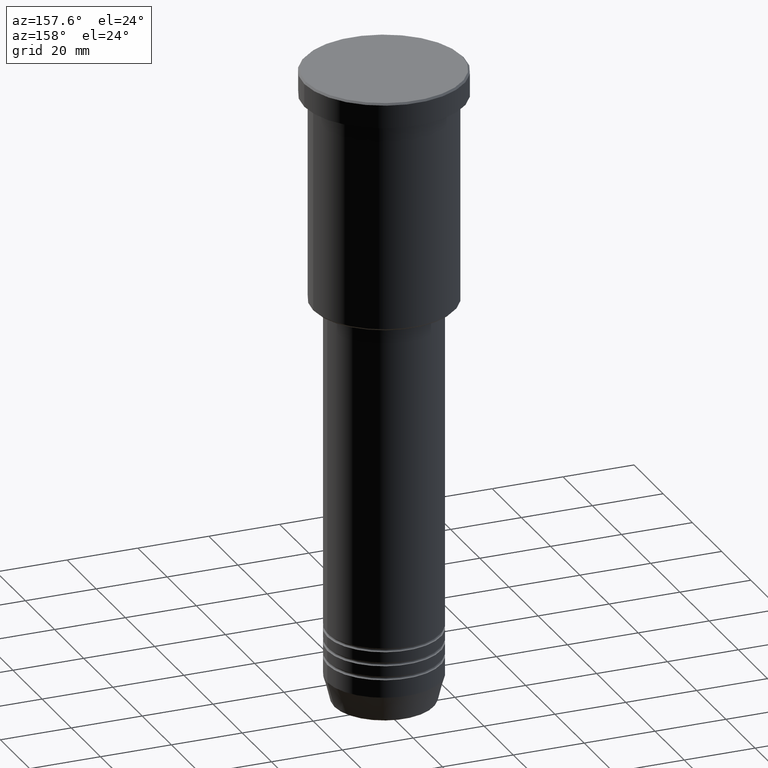
[diagram: clean part render]
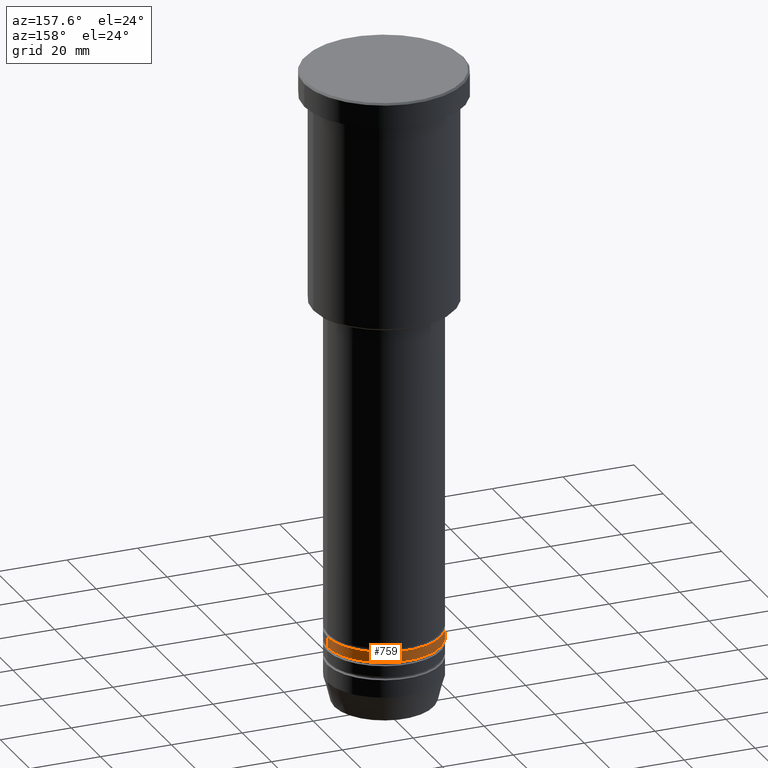
[diagram: same view with one face highlighted and labeled with its STEP entity id]
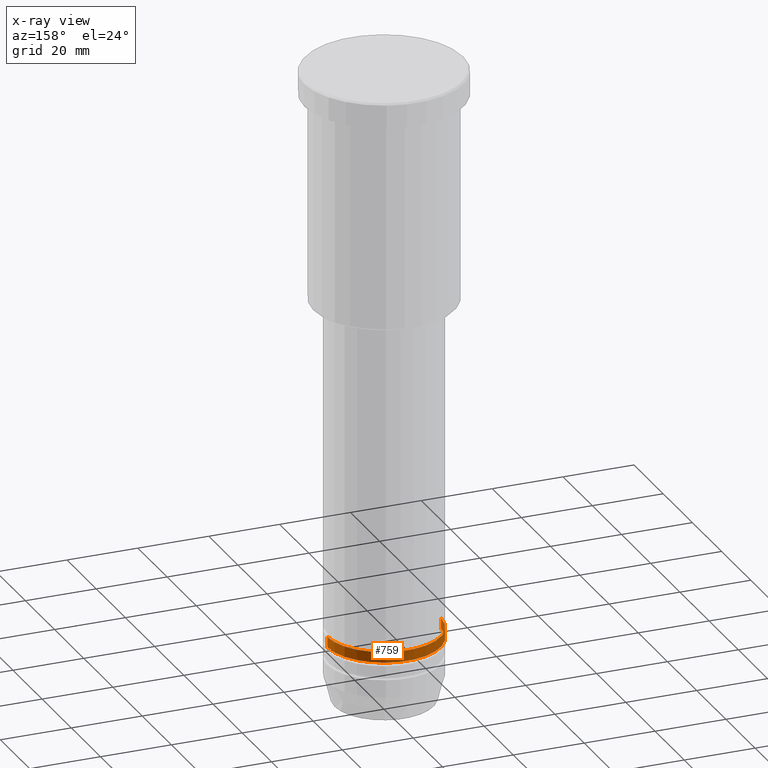
[diagram: x-ray of the same camera — body ghosted, the highlighted face saturated]
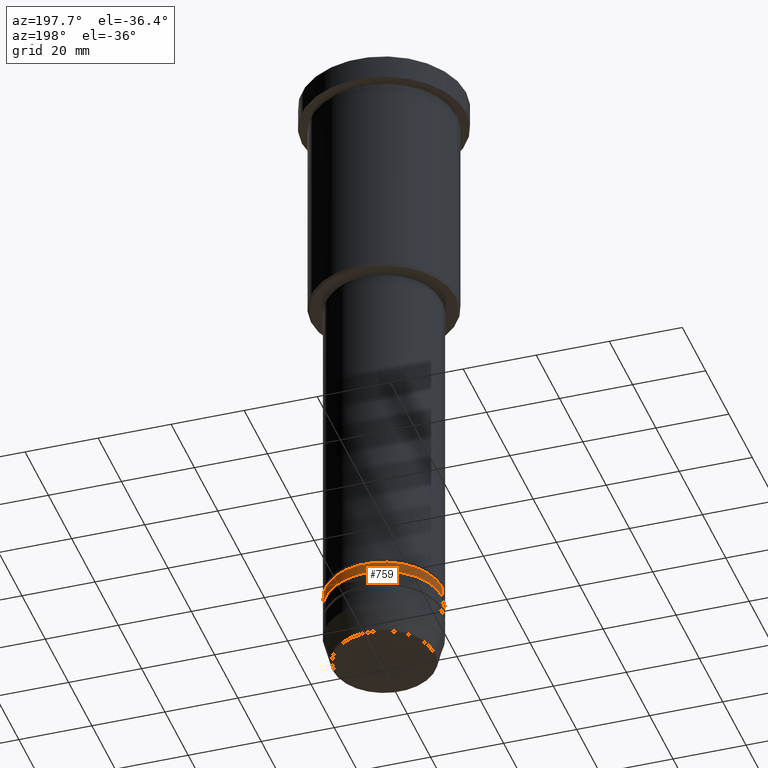
[diagram: same view with one face highlighted and labeled with its STEP entity id]
A machine part, auxiliary view. The second image highlights one B-rep face of the part: STEP entity #759.
The next image is the same camera in x-ray: the body ghosted, the highlighted face saturated — about 0% of this face is hidden behind the body in this view.
A second angle (auxiliary view) of the same face is appended — the face is thin or edge-on in the first view.
In plain terms, the highlighted cylindrical surface (partial cylindrical patch) has radius 16 mm, axis along (-0, -0, 1).
Its self-contained STEP definition (entity closure, byte-faithful):
#22 = DIRECTION ( 'NONE',  ( -0.000000000000000000, -0.000000000000000000, 1.000000000000000000 ) ) ;
#40 = DIRECTION ( 'NONE',  ( 1.000000000000000000, 0.000000000000000000, 0.000000000000000000 ) ) ;
#68 = VERTEX_POINT ( 'NONE', #1183 ) ;
#120 = VERTEX_POINT ( 'NONE', #560 ) ;
#135 = AXIS2_PLACEMENT_3D ( 'NONE', #230, #511, #40 ) ;
#193 = VERTEX_POINT ( 'NONE', #1104 ) ;
#227 = DIRECTION ( 'NONE',  ( -0.000000000000000000, -0.000000000000000000, 1.000000000000000000 ) ) ;
#230 = CARTESIAN_POINT ( 'NONE',  ( 0.000000000000000000, 0.000000000000000000, -159.5000000000000000 ) ) ;
#243 = DIRECTION ( 'NONE',  ( -0.000000000000000000, -0.000000000000000000, 1.000000000000000000 ) ) ;
#261 = CARTESIAN_POINT ( 'NONE',  ( -16.00000000000000000, 1.959434878635765131E-15, 0.000000000000000000 ) ) ;
#265 = DIRECTION ( 'NONE',  ( -0.000000000000000000, -0.000000000000000000, 1.000000000000000000 ) ) ;
#312 = ORIENTED_EDGE ( 'NONE', *, *, #845, .F. ) ;
#325 = ORIENTED_EDGE ( 'NONE', *, *, #361, .T. ) ;
#326 = CARTESIAN_POINT ( 'NONE',  ( 0.000000000000000000, 0.000000000000000000, 0.000000000000000000 ) ) ;
#339 = FACE_OUTER_BOUND ( 'NONE', #689, .T. ) ;
#361 = EDGE_CURVE ( 'NONE', #193, #1084, #1078, .T. ) ;
#404 = DIRECTION ( 'NONE',  ( 1.000000000000000000, 0.000000000000000000, 0.000000000000000000 ) ) ;
#485 = VECTOR ( 'NONE', #243, 1000.000000000000000 ) ;
#511 = DIRECTION ( 'NONE',  ( -0.000000000000000000, -0.000000000000000000, 1.000000000000000000 ) ) ;
#550 = ORIENTED_EDGE ( 'NONE', *, *, #1020, .T. ) ;
#560 = CARTESIAN_POINT ( 'NONE',  ( -16.00000000000000000, 1.959434878635765131E-15, -159.5000000000000000 ) ) ;
#565 = AXIS2_PLACEMENT_3D ( 'NONE', #810, #265, #970 ) ;
#689 = EDGE_LOOP ( 'NONE', ( #325, #550, #312, #991 ) ) ;
#744 = EDGE_CURVE ( 'NONE', #193, #68, #1053, .T. ) ;
#759 = ADVANCED_FACE ( 'NONE', ( #339 ), #1038, .T. ) ;
#810 = CARTESIAN_POINT ( 'NONE',  ( 0.000000000000000000, 0.000000000000000000, -162.5000000000000000 ) ) ;
#845 = EDGE_CURVE ( 'NONE', #68, #120, #1034, .T. ) ;
#894 = CARTESIAN_POINT ( 'NONE',  ( -16.00000000000000355, 1.959434878635765526E-15, -162.5000000000000000 ) ) ;
#970 = DIRECTION ( 'NONE',  ( 1.000000000000000000, 0.000000000000000000, 0.000000000000000000 ) ) ;
#991 = ORIENTED_EDGE ( 'NONE', *, *, #744, .F. ) ;
#1020 = EDGE_CURVE ( 'NONE', #1084, #120, #1092, .T. ) ;
#1034 = CIRCLE ( 'NONE', #135, 16.00000000000000000 ) ;
#1038 = CYLINDRICAL_SURFACE ( 'NONE', #1096, 16.00000000000000000 ) ;
#1047 = CARTESIAN_POINT ( 'NONE',  ( 16.00000000000000000, 0.000000000000000000, 0.000000000000000000 ) ) ;
#1053 = LINE ( 'NONE', #1047, #485 ) ;
#1078 = CIRCLE ( 'NONE', #565, 16.00000000000000355 ) ;
#1084 = VERTEX_POINT ( 'NONE', #894 ) ;
#1092 = LINE ( 'NONE', #261, #1157 ) ;
#1096 = AXIS2_PLACEMENT_3D ( 'NONE', #326, #227, #404 ) ;
#1104 = CARTESIAN_POINT ( 'NONE',  ( 16.00000000000000355, 0.000000000000000000, -162.5000000000000000 ) ) ;
#1157 = VECTOR ( 'NONE', #22, 1000.000000000000000 ) ;
#1183 = CARTESIAN_POINT ( 'NONE',  ( 16.00000000000000000, 0.000000000000000000, -159.5000000000000000 ) ) ;